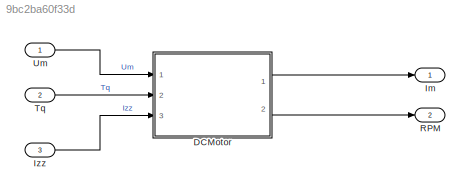
MODEL slx_9bc2ba60f33d
KIND model
CONFIG AbsTol = auto
CONFIG EnableMultiTasking = off
CONFIG FixedStep = auto
CONFIG MaxStep = auto
CONFIG MinStep = auto
CONFIG PreLoadFcn = load MOTOR_BUS.mat
CONFIG RelTol = 1e-3
CONFIG SampleTimeConstraint = Unconstrained
CONFIG Solver = FixedStepAuto
CONFIG SolverName = FixedStepAuto
CONFIG StartTime = 0.0
CONFIG StopTime = 10.0
WORKSPACE source: MAT-file member
WORKSPACE Izzm = 1e-05
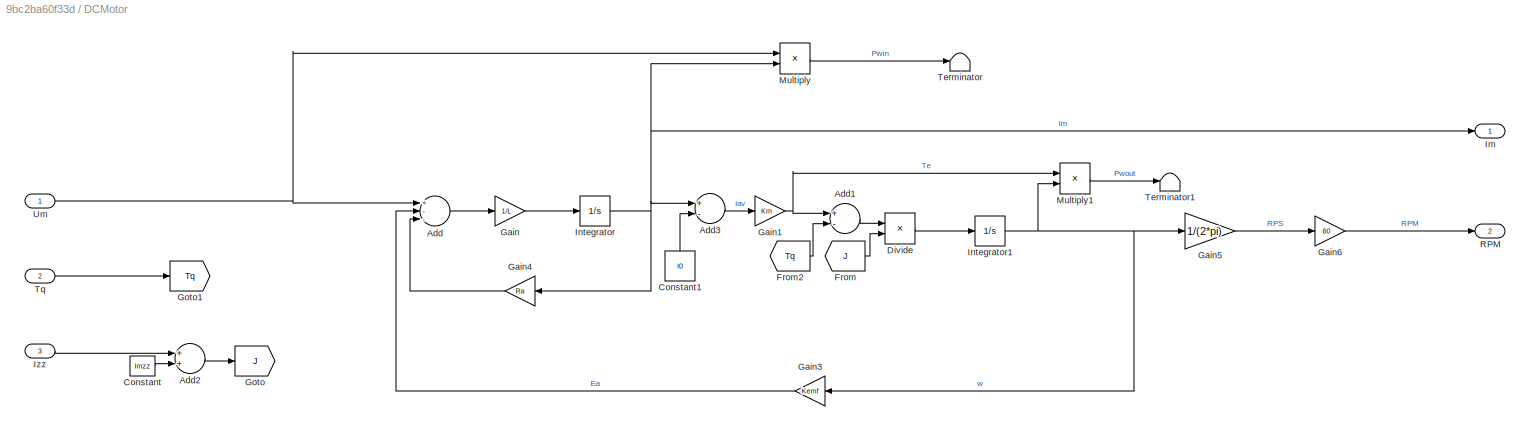
BLOCK [SubSystem] DCMotor
  Ports = [3, 2]
  RequestExecContextInheritance = off
BLOCK [Sum] DCMotor/Add
  InputSameDT = off
  Inputs = +--
  OutDataTypeStr = Inherit: Inherit via internal rule
  Ports = [3, 1]
  SaturateOnIntegerOverflow = off
BLOCK [Sum] DCMotor/Add1
  InputSameDT = off
  Inputs = +-
  OutDataTypeStr = Inherit: Inherit via internal rule
  Ports = [2, 1]
  SaturateOnIntegerOverflow = off
BLOCK [Sum] DCMotor/Add2
  InputSameDT = off
  OutDataTypeStr = Inherit: Inherit via internal rule
  Ports = [2, 1]
  SaturateOnIntegerOverflow = off
BLOCK [Sum] DCMotor/Add3
  InputSameDT = off
  Inputs = +-
  OutDataTypeStr = Inherit: Inherit via internal rule
  Ports = [2, 1]
  SaturateOnIntegerOverflow = off
BLOCK [Constant] DCMotor/Constant
  Value = Imzz
BLOCK [Constant] DCMotor/Constant1
  Value = I0
BLOCK [Product] DCMotor/Divide
  InputSameDT = off
  Inputs = */
  OutDataTypeStr = Inherit: Inherit via internal rule
  Ports = [2, 1]
  RndMeth = Floor
  SaturateOnIntegerOverflow = off
BLOCK [From] DCMotor/From
  GotoTag = J
BLOCK [From] DCMotor/From2
  GotoTag = Tq
BLOCK [Gain] DCMotor/Gain
  Gain = 1/L
  OutDataTypeStr = Inherit: Inherit via internal rule
  ParamDataTypeStr = Inherit: Inherit via internal rule
  SaturateOnIntegerOverflow = off
BLOCK [Gain] DCMotor/Gain1
  Gain = Km
  OutDataTypeStr = Inherit: Inherit via internal rule
  ParamDataTypeStr = Inherit: Inherit via internal rule
  SaturateOnIntegerOverflow = off
BLOCK [Gain] DCMotor/Gain3
  Gain = Kemf
  OutDataTypeStr = Inherit: Inherit via internal rule
  ParamDataTypeStr = Inherit: Inherit via internal rule
  SaturateOnIntegerOverflow = off
BLOCK [Gain] DCMotor/Gain4
  Gain = Ra
  OutDataTypeStr = Inherit: Inherit via internal rule
  ParamDataTypeStr = Inherit: Inherit via internal rule
  SaturateOnIntegerOverflow = off
BLOCK [Gain] DCMotor/Gain5
  Gain = 1/(2*pi)
  OutDataTypeStr = Inherit: Inherit via internal rule
  ParamDataTypeStr = Inherit: Inherit via internal rule
  SaturateOnIntegerOverflow = off
BLOCK [Gain] DCMotor/Gain6
  Gain = 60
  OutDataTypeStr = Inherit: Inherit via internal rule
  ParamDataTypeStr = Inherit: Inherit via internal rule
  SaturateOnIntegerOverflow = off
BLOCK [Goto] DCMotor/Goto
  GotoTag = J
BLOCK [Goto] DCMotor/Goto1
  GotoTag = Tq
BLOCK [Outport] DCMotor/Im
  IconDisplay = Port number
BLOCK [Integrator] DCMotor/Integrator
  InitialCondition = 0.0001
  Ports = [1, 1]
BLOCK [Integrator] DCMotor/Integrator1
  InitialCondition = 0.0001
  Ports = [1, 1]
BLOCK [Inport] DCMotor/Izz
  IconDisplay = Port number
  Port = 3
BLOCK [Product] DCMotor/Multiply
  InputSameDT = off
  OutDataTypeStr = Inherit: Inherit via internal rule
  Ports = [2, 1]
  RndMeth = Floor
  SaturateOnIntegerOverflow = off
BLOCK [Product] DCMotor/Multiply1
  InputSameDT = off
  OutDataTypeStr = Inherit: Inherit via internal rule
  Ports = [2, 1]
  RndMeth = Floor
  SaturateOnIntegerOverflow = off
BLOCK [Outport] DCMotor/RPM
  IconDisplay = Port number
  Port = 2
BLOCK [Terminator] DCMotor/Terminator
BLOCK [Terminator] DCMotor/Terminator1
BLOCK [Inport] DCMotor/Tq
  IconDisplay = Port number
  Port = 2
BLOCK [Inport] DCMotor/Um
  IconDisplay = Port number
BLOCK [Outport] Im
  IconDisplay = Port number
BLOCK [Inport] Izz
  IconDisplay = Port number
  Port = 3
  PortDimensions = 1
BLOCK [Outport] RPM
  IconDisplay = Port number
  Port = 2
BLOCK [Inport] Tq
  IconDisplay = Port number
  Port = 2
  PortDimensions = 1
BLOCK [Inport] Um
  IconDisplay = Port number
  PortDimensions = 1
LINE DCMotor/Add1:1 -> DCMotor/Divide:1
LINE DCMotor/Add2:1 -> DCMotor/Goto:1
LINE DCMotor/Add3:1 -> DCMotor/Gain1:1
LINE DCMotor/Add:1 -> DCMotor/Gain:1
LINE DCMotor/Constant1:1 -> DCMotor/Add3:2
LINE DCMotor/Constant:1 -> DCMotor/Add2:2
LINE DCMotor/Divide:1 -> DCMotor/Integrator1:1
LINE DCMotor/From2:1 -> DCMotor/Add1:2
LINE DCMotor/From:1 -> DCMotor/Divide:2
NET DCMotor/Gain1:1 -> DCMotor/Add1:1, DCMotor/Multiply1:1
LINE DCMotor/Gain3:1 -> DCMotor/Add:2
LINE DCMotor/Gain4:1 -> DCMotor/Add:3
LINE DCMotor/Gain5:1 -> DCMotor/Gain6:1
LINE DCMotor/Gain6:1 -> DCMotor/RPM:1
LINE DCMotor/Gain:1 -> DCMotor/Integrator:1
NET DCMotor/Integrator1:1 -> DCMotor/Gain3:1, DCMotor/Gain5:1, DCMotor/Multiply1:2
NET DCMotor/Integrator:1 -> DCMotor/Add3:1, DCMotor/Gain4:1, DCMotor/Im:1, DCMotor/Multiply:2
LINE DCMotor/Izz:1 -> DCMotor/Add2:1
LINE DCMotor/Multiply1:1 -> DCMotor/Terminator1:1
LINE DCMotor/Multiply:1 -> DCMotor/Terminator:1
LINE DCMotor/Tq:1 -> DCMotor/Goto1:1
NET DCMotor/Um:1 -> DCMotor/Add:1, DCMotor/Multiply:1
LINE DCMotor:1 -> Im:1
LINE DCMotor:2 -> RPM:1
LINE Izz:1 -> DCMotor:3
LINE Tq:1 -> DCMotor:2
LINE Um:1 -> DCMotor:1
note: NET lines group one-source signal fan-out (src -> all destinations, sorted); 1:1 wires keep LINE
